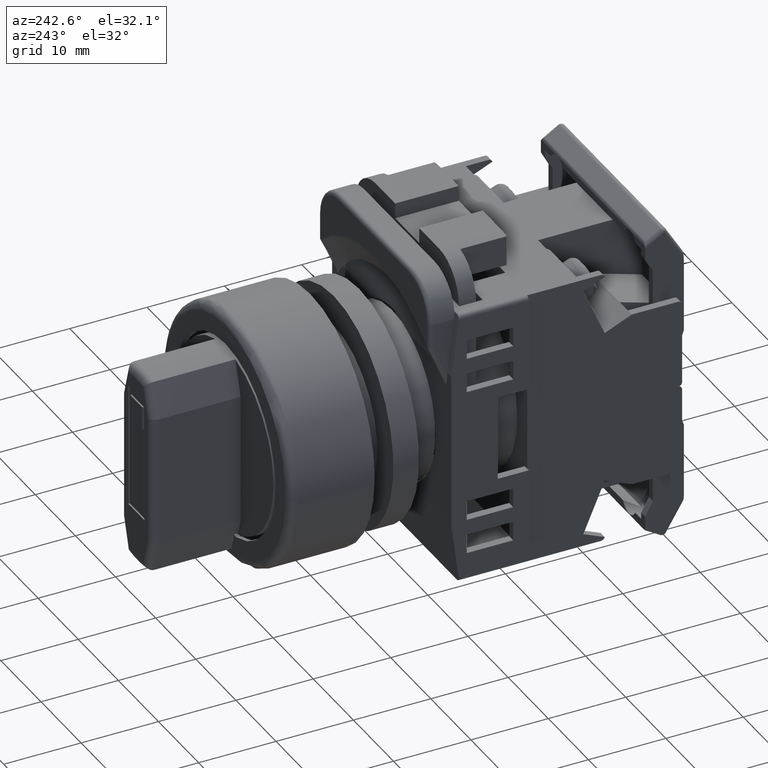
[diagram: clean part render]
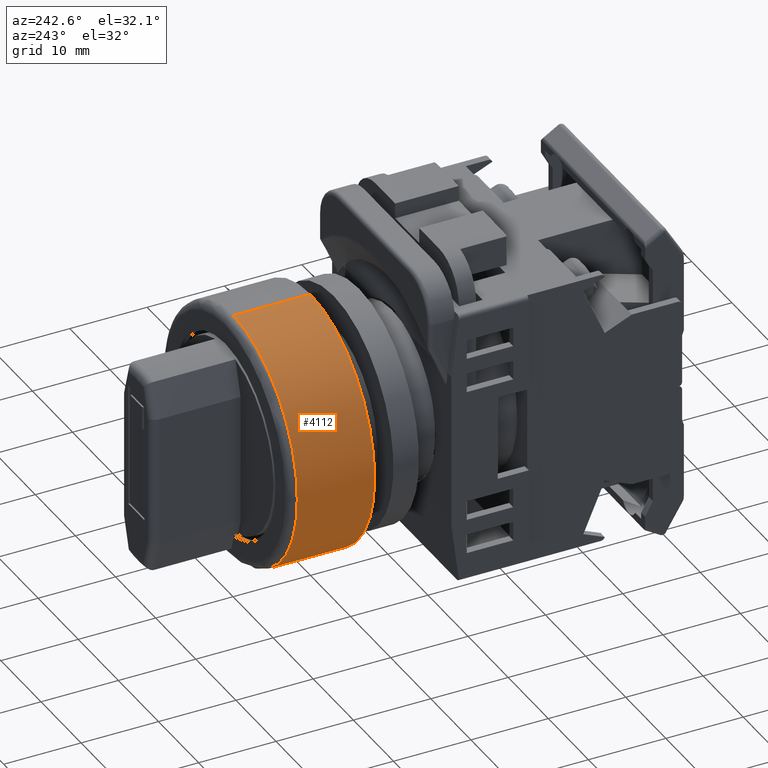
[diagram: same view with one face highlighted and labeled with its STEP entity id]
A machine part, auxiliary view. The second image highlights one B-rep face of the part: STEP entity #4112.
In plain terms, the highlighted cylindrical surface (partial cylindrical patch) has radius 16 mm, axis along (0, -1, 0).
Its self-contained STEP definition (entity closure, byte-faithful):
#341 = LINE ( 'NONE', #6330, #7461 ) ;
#1046 = CARTESIAN_POINT ( 'NONE',  ( 0.0000000000000000000, 9.999999999999998200, 0.0000000000000000000 ) ) ;
#1294 = DIRECTION ( 'NONE',  ( 0.0000000000000000000, -1.000000000000000000, 0.0000000000000000000 ) ) ;
#2095 = CARTESIAN_POINT ( 'NONE',  ( 0.0000000000000000000, 9.999999999999998200, -16.00000000000000000 ) ) ;
#2221 = CARTESIAN_POINT ( 'NONE',  ( 0.0000000000000000000, 11.00000000000000000, -16.00000000000000000 ) ) ;
#2394 = DIRECTION ( 'NONE',  ( 0.0000000000000000000, 0.0000000000000000000, -1.000000000000000000 ) ) ;
#2810 = CARTESIAN_POINT ( 'NONE',  ( 0.0000000000000000000, 0.0000000000000000000, 0.0000000000000000000 ) ) ;
#3209 = VERTEX_POINT ( 'NONE', #16188 ) ;
#3668 = DIRECTION ( 'NONE',  ( 0.0000000000000000000, -1.000000000000000000, 0.0000000000000000000 ) ) ;
#4112 = ADVANCED_FACE ( 'NONE', ( #7317 ), #9611, .T. ) ;
#4164 = DIRECTION ( 'NONE',  ( 0.0000000000000000000, 0.0000000000000000000, -1.000000000000000000 ) ) ;
#4585 = AXIS2_PLACEMENT_3D ( 'NONE', #2810, #12174, #4164 ) ;
#4900 = VERTEX_POINT ( 'NONE', #17232 ) ;
#5098 = VECTOR ( 'NONE', #3668, 1000.000000000000000 ) ;
#5293 = EDGE_LOOP ( 'NONE', ( #9878, #8245, #9485, #16996 ) ) ;
#6002 = CARTESIAN_POINT ( 'NONE',  ( 0.0000000000000000000, 0.0000000000000000000, -16.00000000000000000 ) ) ;
#6330 = CARTESIAN_POINT ( 'NONE',  ( 1.959434878635765100E-015, 11.00000000000000000, 16.00000000000000000 ) ) ;
#7098 = EDGE_CURVE ( 'NONE', #7763, #8897, #12195, .T. ) ;
#7317 = FACE_OUTER_BOUND ( 'NONE', #5293, .T. ) ;
#7461 = VECTOR ( 'NONE', #15673, 1000.000000000000000 ) ;
#7763 = VERTEX_POINT ( 'NONE', #2095 ) ;
#8245 = ORIENTED_EDGE ( 'NONE', *, *, #11479, .T. ) ;
#8897 = VERTEX_POINT ( 'NONE', #6002 ) ;
#9196 = AXIS2_PLACEMENT_3D ( 'NONE', #10617, #1294, #15997 ) ;
#9357 = CIRCLE ( 'NONE', #9991, 16.00000000000000000 ) ;
#9485 = ORIENTED_EDGE ( 'NONE', *, *, #7098, .T. ) ;
#9611 = CYLINDRICAL_SURFACE ( 'NONE', #9196, 16.00000000000000000 ) ;
#9878 = ORIENTED_EDGE ( 'NONE', *, *, #11451, .F. ) ;
#9991 = AXIS2_PLACEMENT_3D ( 'NONE', #1046, #10418, #2394 ) ;
#10418 = DIRECTION ( 'NONE',  ( 0.0000000000000000000, -1.000000000000000000, 0.0000000000000000000 ) ) ;
#10617 = CARTESIAN_POINT ( 'NONE',  ( 0.0000000000000000000, 11.00000000000000000, 0.0000000000000000000 ) ) ;
#11451 = EDGE_CURVE ( 'NONE', #3209, #4900, #341, .T. ) ;
#11479 = EDGE_CURVE ( 'NONE', #3209, #7763, #9357, .T. ) ;
#12174 = DIRECTION ( 'NONE',  ( 0.0000000000000000000, -1.000000000000000000, 0.0000000000000000000 ) ) ;
#12195 = LINE ( 'NONE', #2221, #5098 ) ;
#13206 = CIRCLE ( 'NONE', #4585, 16.00000000000000000 ) ;
#15673 = DIRECTION ( 'NONE',  ( 0.0000000000000000000, -1.000000000000000000, 0.0000000000000000000 ) ) ;
#15878 = EDGE_CURVE ( 'NONE', #4900, #8897, #13206, .T. ) ;
#15997 = DIRECTION ( 'NONE',  ( 0.0000000000000000000, 0.0000000000000000000, -1.000000000000000000 ) ) ;
#16188 = CARTESIAN_POINT ( 'NONE',  ( 1.959434878635765100E-015, 9.999999999999998200, 16.00000000000000000 ) ) ;
#16996 = ORIENTED_EDGE ( 'NONE', *, *, #15878, .F. ) ;
#17232 = CARTESIAN_POINT ( 'NONE',  ( 1.959434878635765100E-015, 0.0000000000000000000, 16.00000000000000000 ) ) ;